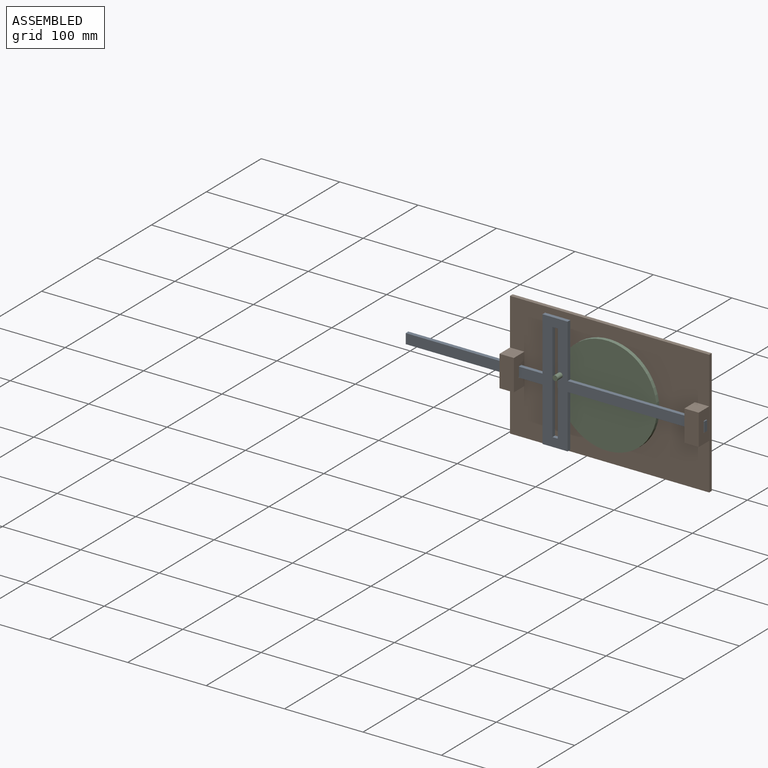
[diagram: assembled view]
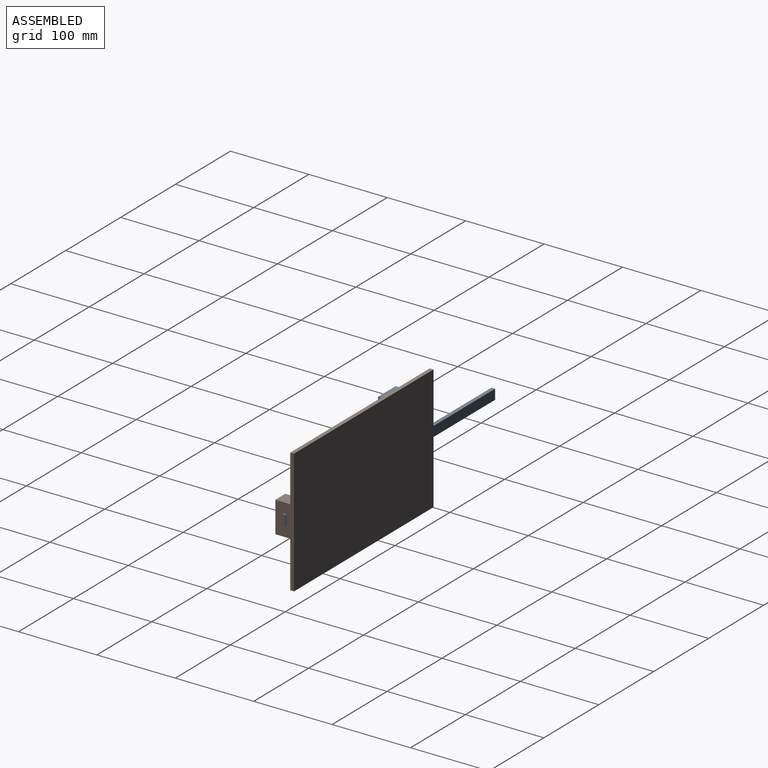
[diagram: assembled view, second angle]
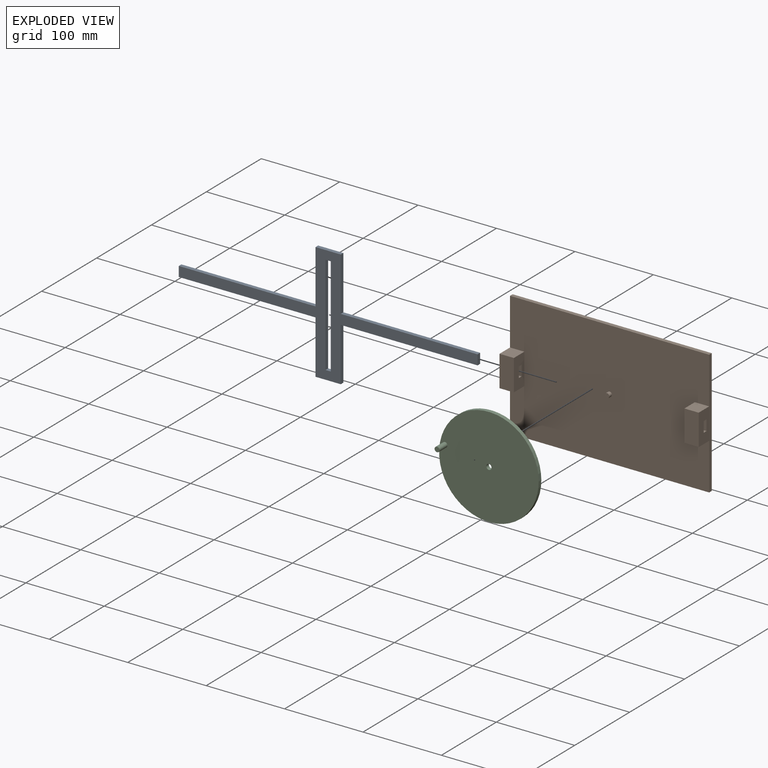
[diagram: exploded view]
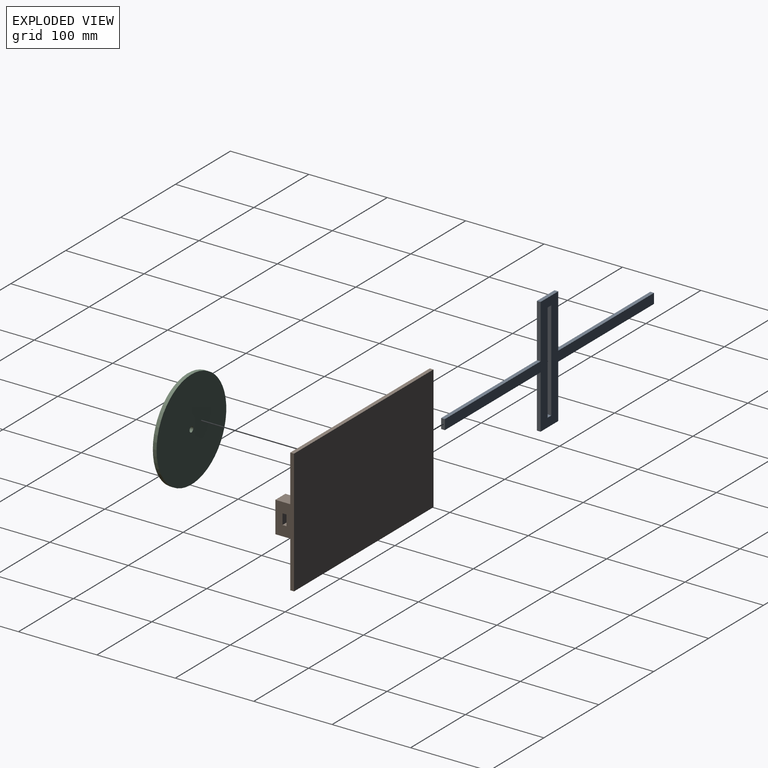
[diagram: exploded view, second angle]
ASSEMBLY  parts=3 mates=2
PART A: 18 faces, bbox 381x4.8x149.5 mm
  f0: plane 6.75x4.76mm, normal (0,0,1), area 32.1mm2, adj f1,f15,f16,f17
  f1: plane 127x4.76mm, normal (1,0,0), area 604.8mm2, adj f0,f2,f16,f17
  f2: plane 6.75x4.76mm, normal (0,0,-1), area 32.1mm2, adj f1,f15,f16,f17
  f3: plane 68.4x4.76mm, normal (-1,0,0), area 325.8mm2, adj f4,f14,f16,f17
  f4: plane 174.43x4.76mm, normal (0,0,1), area 830.7mm2, adj f3,f5,f16,f17
  f5: plane 12.7x4.76mm, normal (-1,0,0), area 60.5mm2, adj f4,f6,f16,f17
  f6: plane 174.43x4.76mm, normal (0,0,-1), area 830.7mm2, adj f5,f7,f16,f17
  f7: plane 68.4x4.76mm, normal (-1,0,0), area 325.8mm2, adj f6,f8,f16,f17
  f8: plane 32.15x4.76mm, normal (0,0,-1), area 153.1mm2, adj f7,f9,f16,f17
  f9: plane 68.4x4.76mm, normal (1,0,0), area 325.8mm2, adj f8,f10,f16,f17
  f10: plane 174.43x4.76mm, normal (0,0,-1), area 830.7mm2, adj f9,f11,f16,f17
  f11: plane 12.7x4.76mm, normal (1,0,0), area 60.5mm2, adj f10,f12,f16,f17
  f12: plane 174.43x4.76mm, normal (0,0,1), area 830.7mm2, adj f11,f13,f16,f17
  f13: plane 68.4x4.76mm, normal (1,0,0), area 325.8mm2, adj f12,f14,f16,f17
  f14: plane 32.15x4.76mm, normal (0,0,1), area 153.1mm2, adj f3,f13,f16,f17
  f15: plane 127x4.76mm, normal (-1,0,0), area 604.8mm2, adj f0,f2,f16,f17
  f16: plane 381x149.51mm, normal (0,-1,0), area 8379.7mm2, adj f0,f1,f2,f3,f4,f5,f6,f7
  f17: plane 381x149.51mm, normal (0,1,0), area 8379.7mm2, adj f0,f1,f2,f3,f4,f5,f6,f7
PART B: 24 faces, bbox 254x23.8x158.8 mm
  f0: plane 254x158.75mm, normal (0,-1,0), area 38849.2mm2, adj f1,f2,f3,f4,f7,f8,f9,f10
  f1: plane 254x4.76mm, normal (0,0,1), area 1209.7mm2, adj f0,f2,f4,f5
  f2: plane 158.75x23.81mm, normal (1,0,0), area 1442.2mm2, adj f0,f1,f3,f5,f16,f17,f19,f20
  f3: plane 254x4.76mm, normal (0,0,-1), area 1209.7mm2, adj f0,f2,f4,f5
  f4: plane 158.75x23.81mm, normal (-1,0,0), area 1442.2mm2, adj f0,f1,f3,f5,f9,f10,f11,f12
  f5: plane 254x158.75mm, normal (0,1,0), area 40322.5mm2, adj f1,f2,f3,f4
  f6: plane 5.95x5.95mm, normal (0,-1,0), area 27.8mm2, adj f7
  f7: cylinder r=2.98mm len=5.95mm, axis (0,1,0), area 89.1mm2, adj f0,f6
  f8: plane 39.68x19.05mm, normal (1,0,0), area 686.2mm2, adj f0,f9,f10,f11,f12,f13,f14,f15
  f9: plane 19.05x18.22mm, normal (0,0,-1), area 347mm2, adj f0,f4,f8,f11
  f10: plane 19.05x18.22mm, normal (0,0,1), area 347mm2, adj f0,f4,f8,f11
  f11: plane 39.68x18.22mm, normal (0,-1,0), area 722.7mm2, adj f4,f8,f9,f10
  f12: plane 18.22x5.16mm, normal (0,0,-1), area 94mm2, adj f4,f8,f14,f15
  f13: plane 18.22x5.16mm, normal (0,0,1), area 94mm2, adj f4,f8,f14,f15
  f14: plane 18.22x13.49mm, normal (0,1,0), area 245.8mm2, adj f4,f8,f12,f13
  f15: plane 18.22x13.49mm, normal (0,-1,0), area 245.8mm2, adj f4,f8,f12,f13
  f16: plane 19.05x18.22mm, normal (0,0,1), area 347mm2, adj f0,f2,f18,f19
  f17: plane 19.05x18.22mm, normal (0,0,-1), area 347mm2, adj f0,f2,f18,f19
  f18: plane 39.68x19.05mm, normal (-1,0,0), area 686.2mm2, adj f0,f16,f17,f19,f20,f21,f22,f23
  f19: plane 39.68x18.22mm, normal (0,-1,0), area 722.7mm2, adj f2,f16,f17,f18
  f20: plane 18.22x5.16mm, normal (0,0,1), area 94mm2, adj f2,f18,f22,f23
  f21: plane 18.22x5.16mm, normal (0,0,-1), area 94mm2, adj f2,f18,f22,f23
  f22: plane 18.22x13.49mm, normal (0,1,0), area 245.8mm2, adj f2,f18,f20,f21
  f23: plane 18.22x13.49mm, normal (0,-1,0), area 245.8mm2, adj f2,f18,f20,f21
PART C: 6 faces, bbox 127x19.1x127 mm
  f0: cylinder r=3.37mm len=6.75mm, axis (0,1,0), area 100.9mm2, adj f2,f3
  f1: cylinder r=63.5mm len=127mm, axis (0,1,0), area 1900.2mm2, adj f2,f3
  f2: plane 127x127mm, normal (0,-1,0), area 12600.3mm2, adj f0,f1,f4
  f3: plane 127x127mm, normal (0,1,0), area 12631.9mm2, adj f0,f1
  f4: cylinder r=3.17mm len=14.29mm, axis (0,1,0), area 285mm2, adj f2,f5
  f5: plane 6.35x6.35mm, normal (0,-1,0), area 31.7mm2, adj f4
PLACE A rot(axis=(0.37,0.54,-0.75),0deg) t=(-282.62,181.39,-18.28)mm
PLACE B t=(-162.77,181.58,-18.28)mm fixed
PLACE C rot(axis=(0,-1,0),169.3deg) t=(-162.77,181.58,-18.28)mm
MATE slider A.f11 <-> B.f2  axis (1,0,0) through (-34.97,171.86,-24.63)mm
MATE revolute B.f7 <-> C.f0  axis (0,-1,0) through (-162.77,181.58,-18.28)mm
